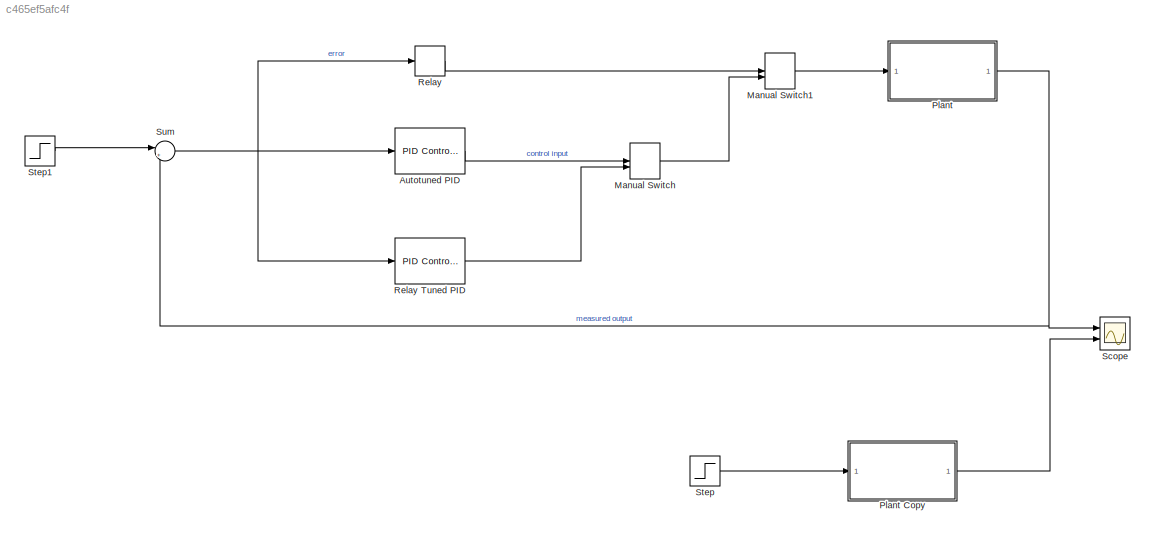
MODEL slx_c465ef5afc4f
KIND model
CONFIG AbsTol = auto
CONFIG EnableMultiTasking = on
CONFIG FixedStep = auto
CONFIG MaxStep = 0.01
CONFIG MinStep = auto
CONFIG RelTol = 1e-4
CONFIG SampleTimeConstraint = Unconstrained
CONFIG Solver = VariableStepAuto
CONFIG SolverName = VariableStepAuto
CONFIG StartTime = 0.0
CONFIG StopTime = 50
BLOCK [Reference] Autotuned PID  REF=simulink/Continuous/PID Controller
  Ports = [1, 1]
  SourceBlock = simulink/Continuous/PID Controller
  SourceProductBaseCode = SL
  SourceProductName = Simulink
  SourceType = PID 1dof
BLOCK [ManualSwitch] Manual Switch
  CurrentSetting = 0
BLOCK [ManualSwitch] Manual Switch1
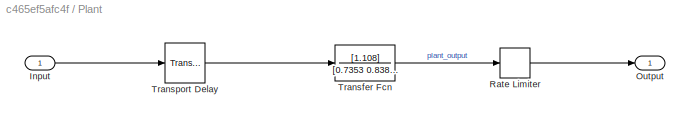
BLOCK [SubSystem] Plant
  Ports = [1, 1]
  RequestExecContextInheritance = off
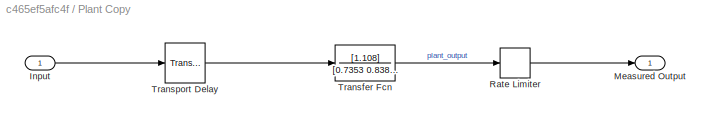
BLOCK [SubSystem] Plant Copy
  Ports = [1, 1]
  RequestExecContextInheritance = off
BLOCK [Inport] Plant Copy/Input
  IconDisplay = Port number
BLOCK [Outport] Plant Copy/Measured Output
  IconDisplay = Port number
BLOCK [RateLimiter] Plant Copy/Rate Limiter
  FallingSlewLimit = -0.657875
  RisingSlewLimit = 0.657875
  SampleTimeMode = inherited
BLOCK [TransferFcn] Plant Copy/Transfer Fcn
  Denominator = [0.7353 0.8386 1]
  Numerator = [1.108]
BLOCK [TransportDelay] Plant Copy/Transport Delay
  DelayTime = 0.45
  Ports = [1, 1]
BLOCK [Inport] Plant/Input
  IconDisplay = Port number
BLOCK [Outport] Plant/Output
  IconDisplay = Port number
BLOCK [RateLimiter] Plant/Rate Limiter
  FallingSlewLimit = -0.657875
  RisingSlewLimit = 0.657875
  SampleTimeMode = inherited
BLOCK [TransferFcn] Plant/Transfer Fcn
  Denominator = [0.7353 0.8386 1]
  Numerator = [1.108]
BLOCK [TransportDelay] Plant/Transport Delay
  DelayTime = 0.45
  Ports = [1, 1]
BLOCK [Relay] Relay
  InputProcessing = Elements as channels (sample based)
  OffOutputValue = 0.75
  OnOutputValue = 1.25
BLOCK [Reference] Relay Tuned PID  REF=simulink/Continuous/PID Controller
  Ports = [1, 1]
  SourceBlock = simulink/Continuous/PID Controller
  SourceProductBaseCode = SL
  SourceProductName = Simulink
  SourceType = PID 1dof
BLOCK [Scope] Scope
  Floating = off
  NumInputPorts = 2
  Ports = [2]
  ScopeSpecificationString = Simulink.scopes.TimeScopeBlockCfg('CurrentConfiguration', extmgr.ConfigurationSet(extmgr.Configuration('Core','General UI',true),extmgr.Configuration('Core','Source UI',true),extmgr.Configuration('Sources','WiredSimulink',true),extmgr.Configuration('Visuals','Time Domain',true,'SerializedDisplays',{struct('MinYLimReal','-0.20829','MaxYLimReal','1.8746','YLabelReal','','MinYLimMag','0.00000','MaxYL...<+1415ch>
BLOCK [Step] Step
  SampleTime = 0
BLOCK [Step] Step1
  After = 1.108
  SampleTime = 0
BLOCK [Sum] Sum
  IconShape = round
  InputSameDT = off
  Inputs = |+-
  OutDataTypeStr = Inherit: Inherit via internal rule
  Ports = [2, 1]
  SaturateOnIntegerOverflow = off
LINE Autotuned PID:1 -> Manual Switch:1
LINE Manual Switch1:1 -> Plant:1
LINE Manual Switch:1 -> Manual Switch1:2
LINE Plant Copy/Input:1 -> Plant Copy/Transport Delay:1
LINE Plant Copy/Rate Limiter:1 -> Plant Copy/Measured Output:1
LINE Plant Copy/Transfer Fcn:1 -> Plant Copy/Rate Limiter:1
LINE Plant Copy/Transport Delay:1 -> Plant Copy/Transfer Fcn:1
LINE Plant Copy:1 -> Scope:2
LINE Plant/Input:1 -> Plant/Transport Delay:1
LINE Plant/Rate Limiter:1 -> Plant/Output:1
LINE Plant/Transfer Fcn:1 -> Plant/Rate Limiter:1
LINE Plant/Transport Delay:1 -> Plant/Transfer Fcn:1
NET Plant:1 -> Scope:1, Sum:2
LINE Relay Tuned PID:1 -> Manual Switch:2
LINE Relay:1 -> Manual Switch1:1
LINE Step1:1 -> Sum:1
LINE Step:1 -> Plant Copy:1
NET Sum:1 -> Autotuned PID:1, Relay Tuned PID:1, Relay:1
note: NET lines group one-source signal fan-out (src -> all destinations, sorted); 1:1 wires keep LINE
